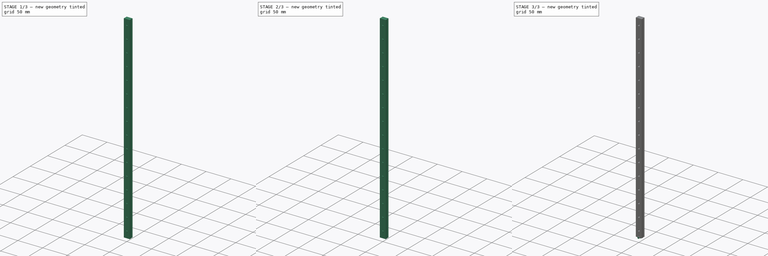
[diagram: build sequence overview — one tinted view per stage of 3, left to right]
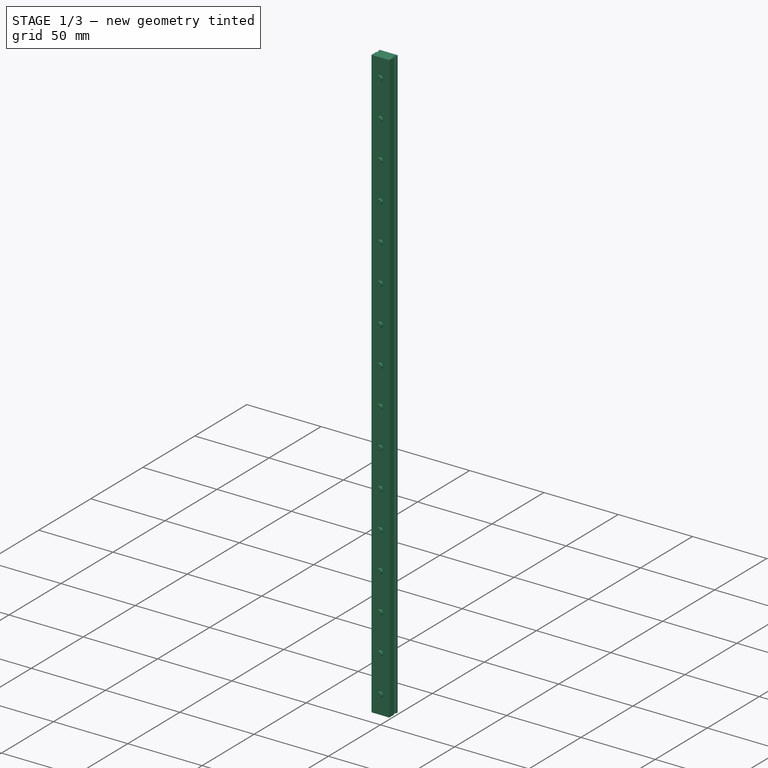
[diagram: stage 1 of 3 — iso view after this stage's code; geometry added in this stage tinted green]
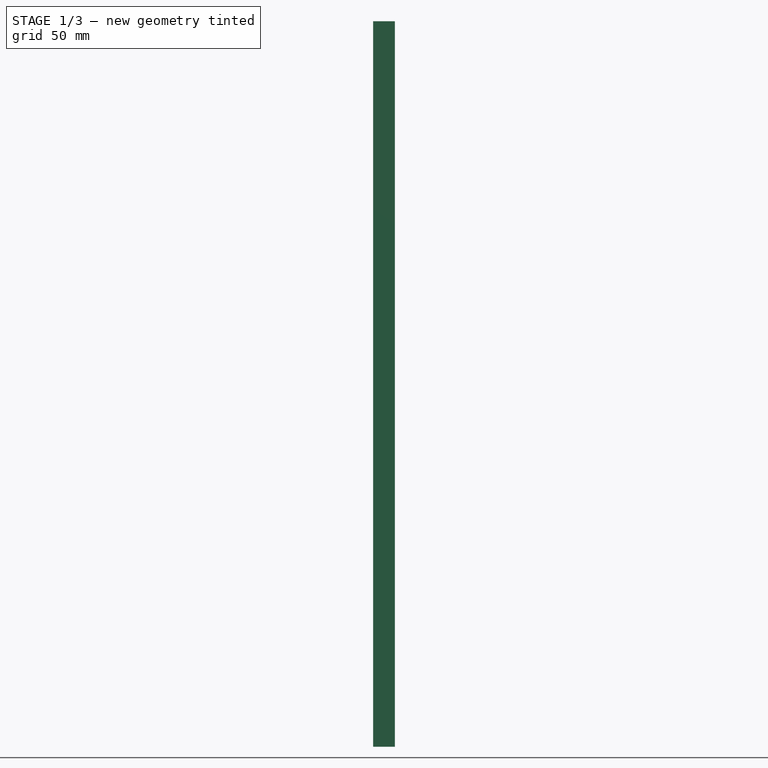
[diagram: stage 1 of 3 — front view after this stage's code; geometry added in this stage tinted green]
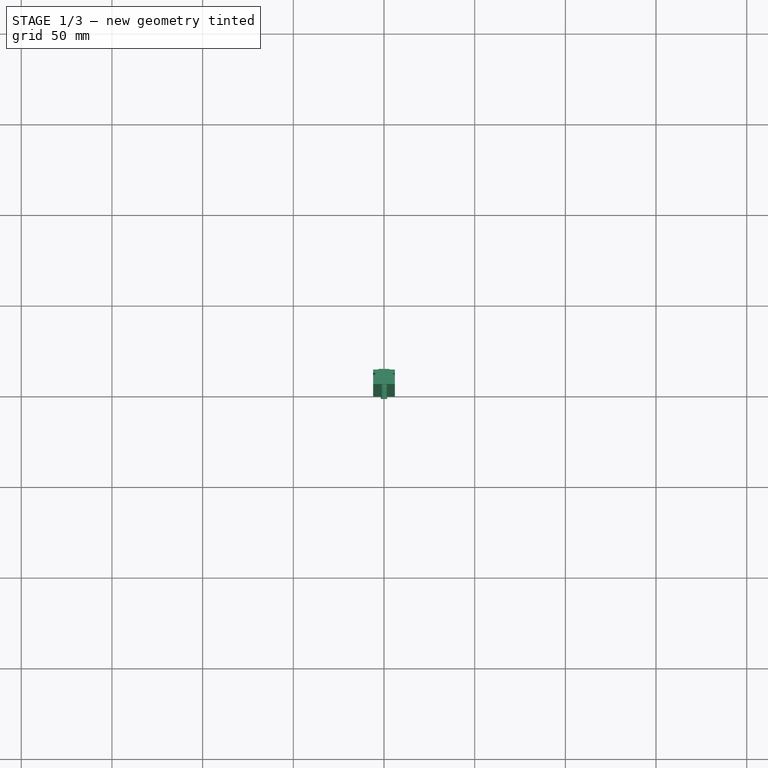
[diagram: stage 1 of 3 — top view after this stage's code; geometry added in this stage tinted green]
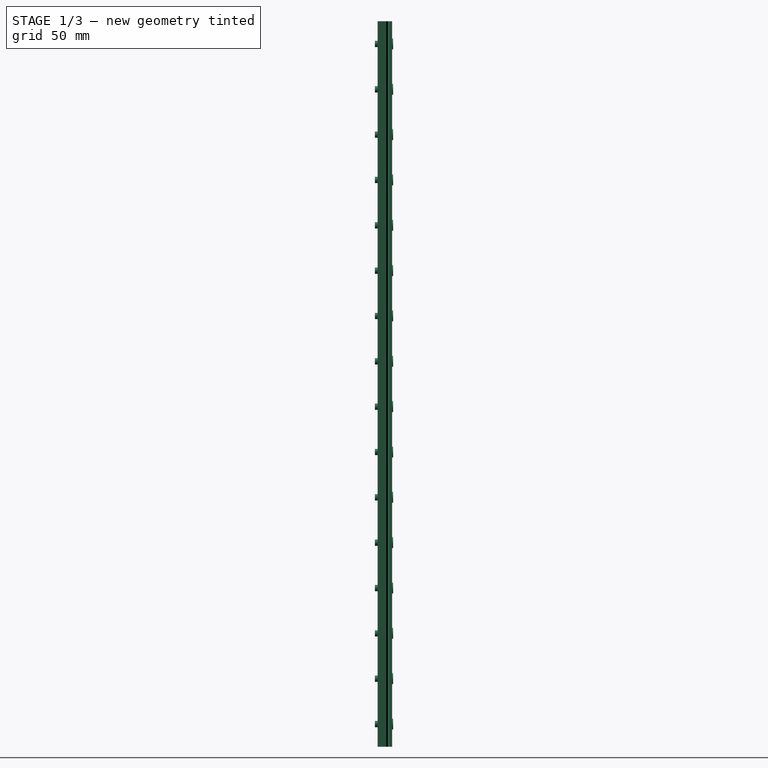
[diagram: stage 1 of 3 — right view after this stage's code; geometry added in this stage tinted green]
FCSTD DOCUMENT
Label: mgn_rail
objects: Sketcher::SketchObject×3, PartDesign::Pad×3, PartDesign::Fillet×2, Part::MultiFuse×1, Part::FeaturePython×1, Part::Cut×1
note: 14 computed .brp shape members not serialized (recipe doc carries the construction recipe); baked Part::Feature solids carry a one-line shape summary decoded from their .brp

FEATURE [Sketcher::SketchObject] Sketch  label="Rail"
  sketch-geometry (15):
    g0: LineSegment StartX=-6 StartY=8 StartZ=0 EndX=6 EndY=8 EndZ=0
    g1: LineSegment StartX=6 StartY=8 StartZ=0 EndX=6 EndY=6.55 EndZ=0
    g2: LineSegment StartX=6 StartY=6.55 StartZ=0 EndX=4.5 EndY=5.65 EndZ=0
    g3: LineSegment StartX=4.5 StartY=5.65 StartZ=0 EndX=6 EndY=4.75 EndZ=0
    g4: LineSegment StartX=6 StartY=4.75 StartZ=0 EndX=6 EndY=0 EndZ=0
    g5: LineSegment StartX=6 StartY=0 StartZ=0 EndX=-6 EndY=0 EndZ=0
    g6: LineSegment StartX=-6 StartY=0 StartZ=0 EndX=-6 EndY=4.75 EndZ=0
    g7: LineSegment StartX=-6 StartY=4.75 StartZ=0 EndX=-4.5 EndY=5.65 EndZ=0
    g8: LineSegment StartX=-4.5 StartY=5.65 StartZ=0 EndX=-6 EndY=6.55 EndZ=0
    g9: LineSegment StartX=-6 StartY=6.55 StartZ=0 EndX=-6 EndY=8 EndZ=0
    g10: LineSegment [constr] StartX=-6 StartY=0 StartZ=0 EndX=-6 EndY=16.3951 EndZ=0
    g11: LineSegment [constr] StartX=6 StartY=0 StartZ=0 EndX=6 EndY=13.5168 EndZ=0
    g12: LineSegment [constr] StartX=-6 StartY=6.55 StartZ=0 EndX=16.521 EndY=6.55 EndZ=0
    g13: LineSegment [constr] StartX=-6 StartY=4.75 StartZ=0 EndX=16.8629 EndY=4.75 EndZ=0
    g14: LineSegment [constr] StartX=-4.5 StartY=5.65 StartZ=0 EndX=16.7945 EndY=5.65 EndZ=0
  constraints (39):
    c: Horizontal(g0)
    c: Coincident(g0,g1)
    c: Coincident(g1,g2)
    c: Coincident(g2,g3)
    c: Coincident(g3,g4)
    c: Vertical(g4)
    c: Coincident(g4,g5)
    c: Horizontal(g5)
    c: Coincident(g5,g6)
    c: Vertical(g6)
    c: Coincident(g6,g7)
    c: Coincident(g7,g8)
    c: Coincident(g8,g9)
    c: Coincident(g9,g0)
    c: Vertical(g9)
    c: DistanceX(g4,g5) = -12
    c: Symmetric(g5,g4,g-2)
    c: Coincident(g10,g5)
    c: Vertical(g10)
    c: Vertical(g11)
    c: PointOnObject(g8,g10)
    c: PointOnObject(g1,g11)
    c: Vertical(g1)
    c: Coincident(g11,g4)
    c: DistanceY(g5,g0) = 8
    c: Coincident(g12,g8)
    c: Horizontal(g12)
    c: PointOnObject(g1,g12)
    c: Coincident(g13,g6)
    c: Horizontal(g13)
    c: Coincident(g14,g7)
    c: PointOnObject(g2,g14)
    c: PointOnObject(g3,g13)
    c: DistanceY(g8,g0) = 1.45
    c: Symmetric(g7,g2,g-2)
    c: DistanceY(g3,g4) = -4.75
    c: DistanceX(g7,g2) = 9
    c: Symmetric(g8,g6,g14)
    c: PointOnObject(g4,g-1)
FEATURE [PartDesign::Pad] Pad
  Length = 400
  Length2 = 100
  Sketch = -> Sketch
  Type = 0
FEATURE [Part::MultiFuse] Fusion001
  Placement = pos=(0,0,12.5) rot=(0,0,1;0rad)
FEATURE [Part::FeaturePython] Array  # Draft array (typed FeaturePython)
  Angle = 360
  ArrayType = 0
  Axis = (0,0,1)
  Base = -> Fusion001
  Center = (0,0,0)
  IntervalX = (1,0,0)
  IntervalY = (0,0,25)
  IntervalZ = (0,0,1)
  NumberPolar = 1
  NumberX = 1
  NumberY = 16
  NumberZ = 1
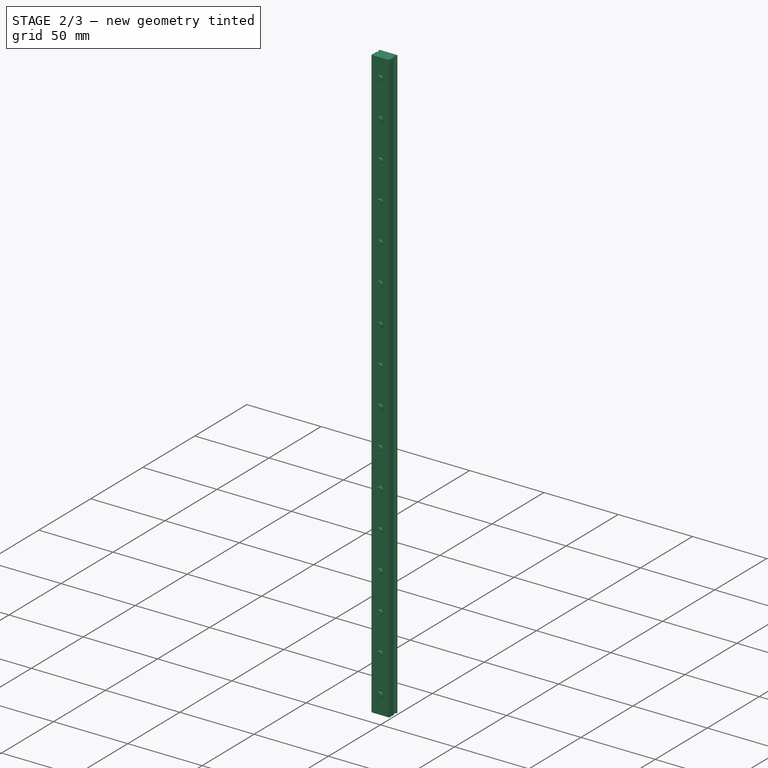
[diagram: stage 2 of 3 — iso view after this stage's code; geometry added in this stage tinted green]
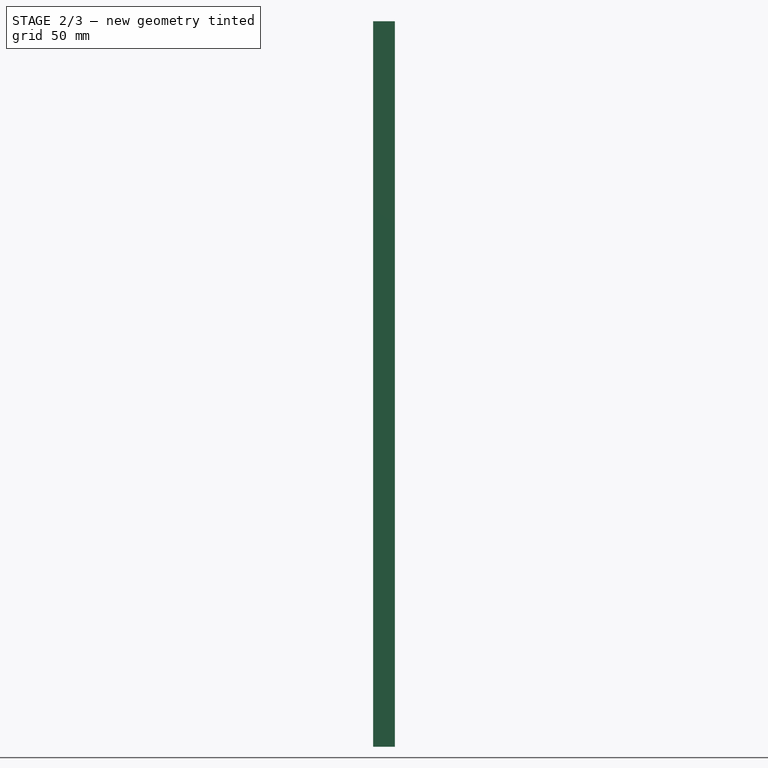
[diagram: stage 2 of 3 — front view after this stage's code; geometry added in this stage tinted green]
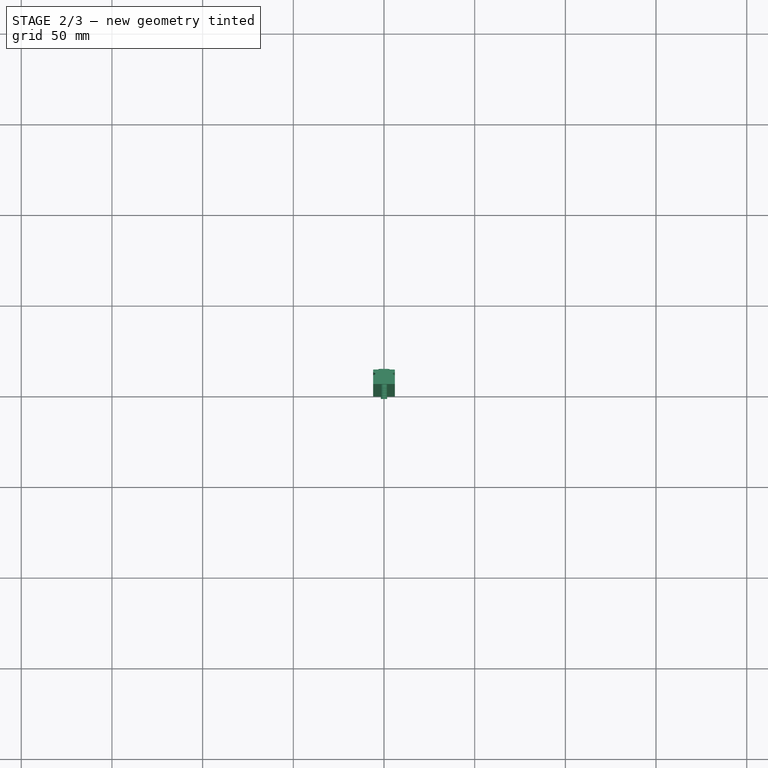
[diagram: stage 2 of 3 — top view after this stage's code; geometry added in this stage tinted green]
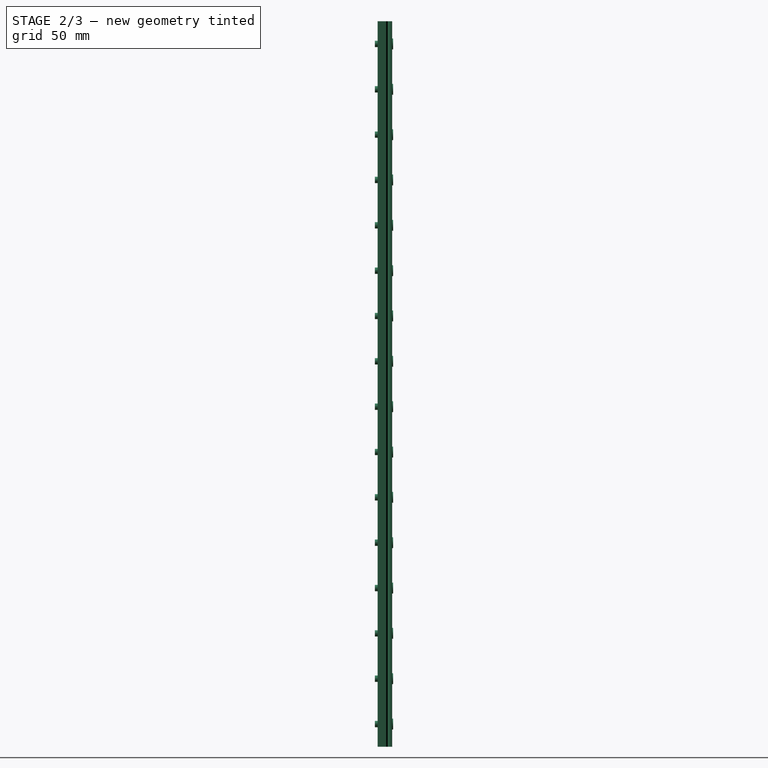
[diagram: stage 2 of 3 — right view after this stage's code; geometry added in this stage tinted green]
FEATURE [PartDesign::Fillet] Fillet
  Base = -> Pad [Edge1,Edge26,Edge20,Edge23]
  Radius = 0.25
FEATURE [PartDesign::Fillet] Fillet001
  Base = -> Fillet [Edge3,Edge20,Edge34,Edge36]
  Radius = 0.25
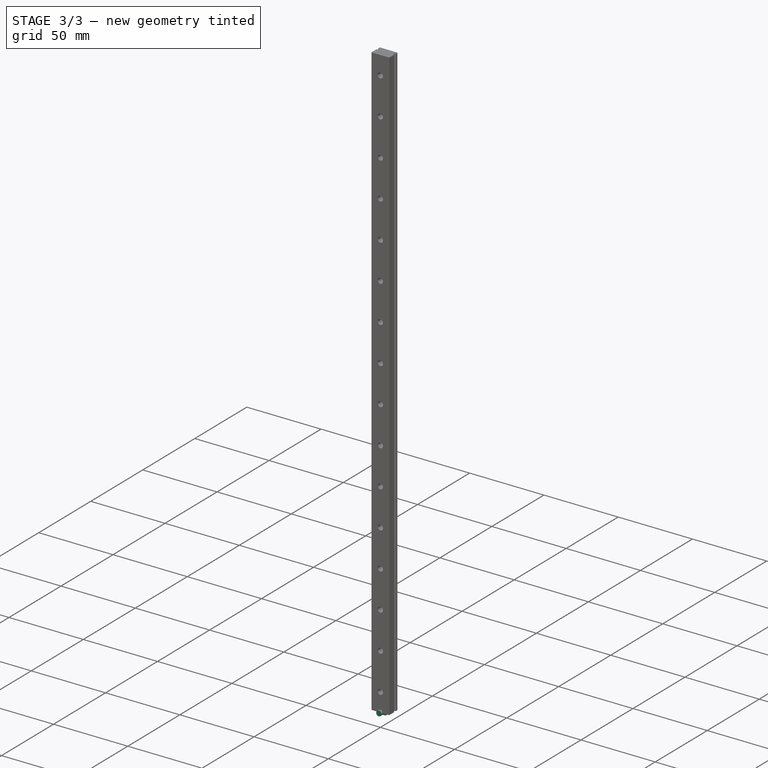
[diagram: stage 3 of 3 — iso view after this stage's code; geometry added in this stage tinted green]
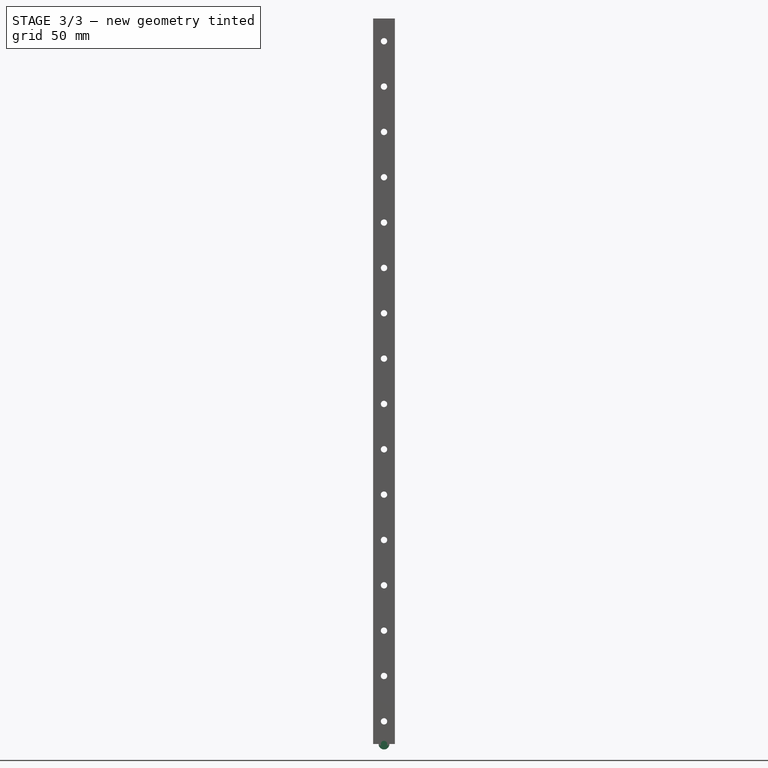
[diagram: stage 3 of 3 — front view after this stage's code; geometry added in this stage tinted green]
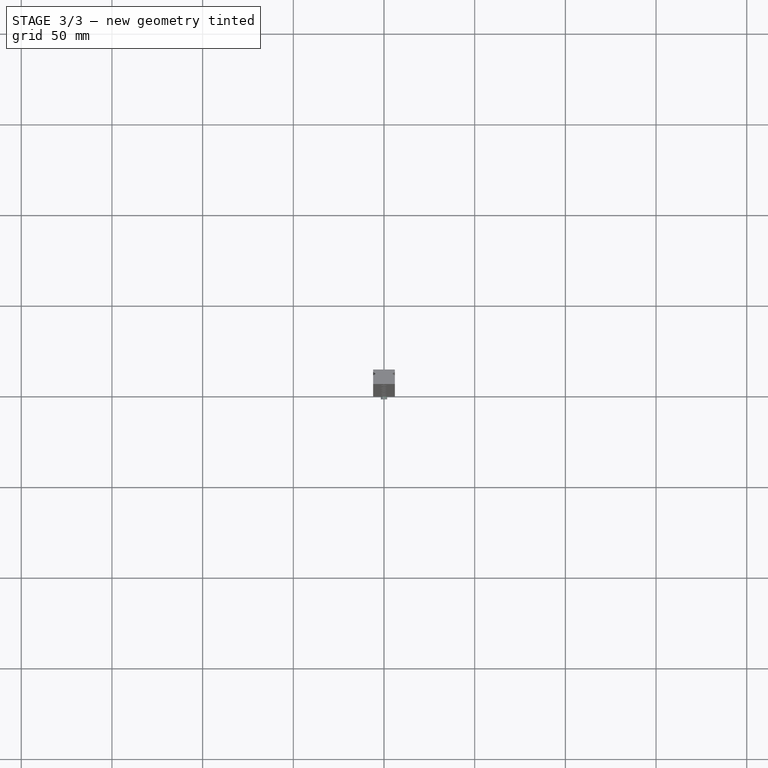
[diagram: stage 3 of 3 — top view after this stage's code; geometry added in this stage tinted green]
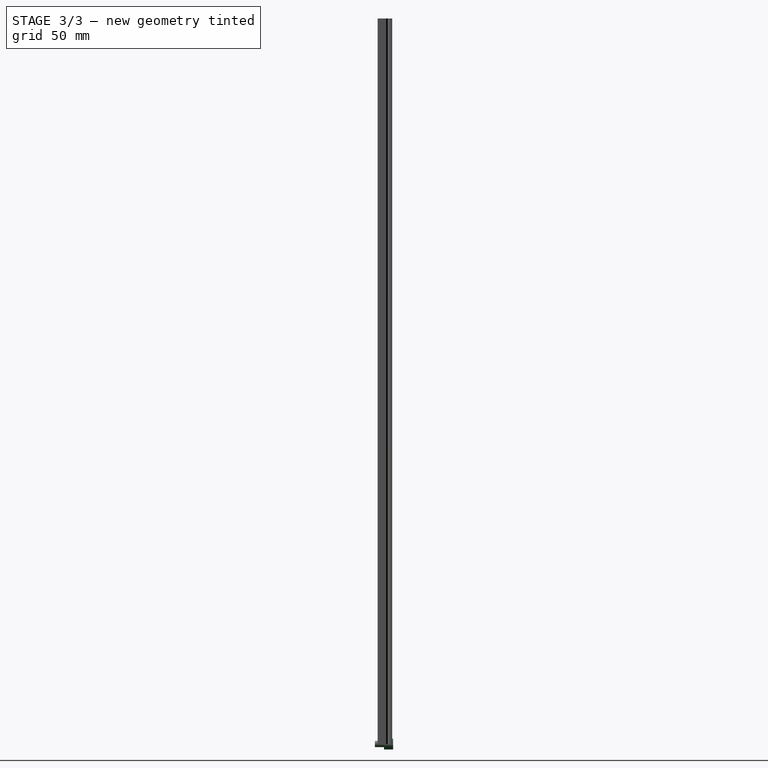
[diagram: stage 3 of 3 — right view after this stage's code; geometry added in this stage tinted green]
FEATURE [Sketcher::SketchObject] Sketch001
  Placement = pos=(0,3.5,0) rot=(-1,0,0;4.71239rad)
  sketch-geometry (1):
    g0: Circle CenterX=0 CenterY=0 CenterZ=0 NormalX=0 NormalY=0 NormalZ=1 Radius=3
  constraints (2):
    c: Radius(g0) = 3
    c: Coincident(g0,g-1)
FEATURE [PartDesign::Pad] Pad001
  Length = 5
  Length2 = 100
  Placement = pos=(0,3.5,0) rot=(-1,0,0;4.71239rad)
  Reversed = true
  Sketch = -> Sketch001
  Type = 0
FEATURE [Sketcher::SketchObject] Sketch002
  Placement = pos=(0,3.5,0) rot=(1,0,0;1.5708rad)
  Support = -> Pad001 [Face2]
  sketch-geometry (1):
    g0: Circle CenterX=0 CenterY=0 CenterZ=0 NormalX=0 NormalY=0 NormalZ=1 Radius=1.75
  constraints (2):
    c: Coincident(g0,g-1)
    c: Radius(g0) = 1.75
FEATURE [PartDesign::Pad] Pad002
  Length = 5
  Length2 = 100
  Placement = pos=(0,3.5,0) rot=(-1,0,0;4.71239rad)
  Sketch = -> Sketch002
  Type = 0
FEATURE [Part::Cut] Cut
  Base = -> Fillet001
  Tool = -> Array
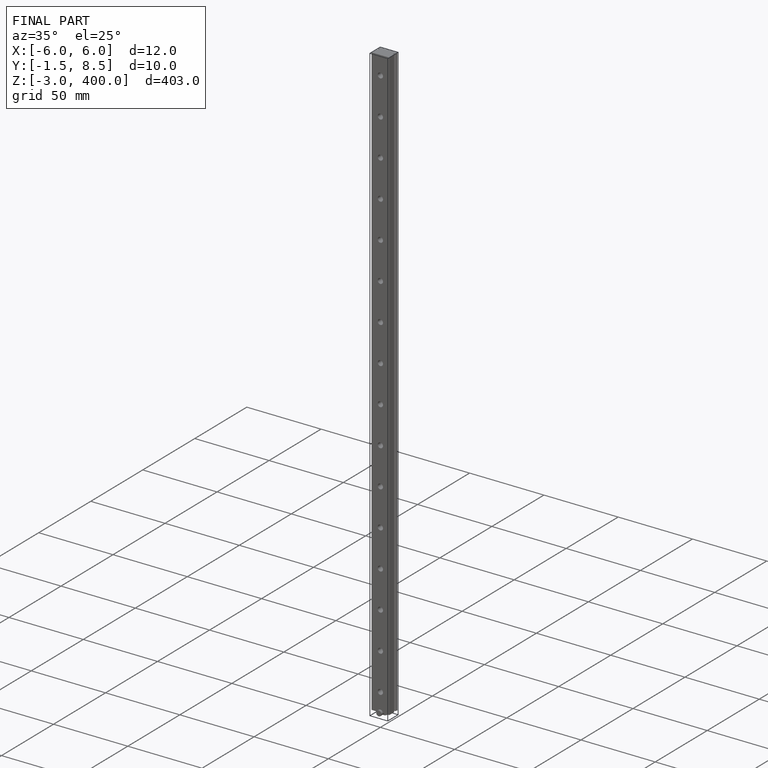
[diagram: finished part — iso view with bounding-box wireframe]
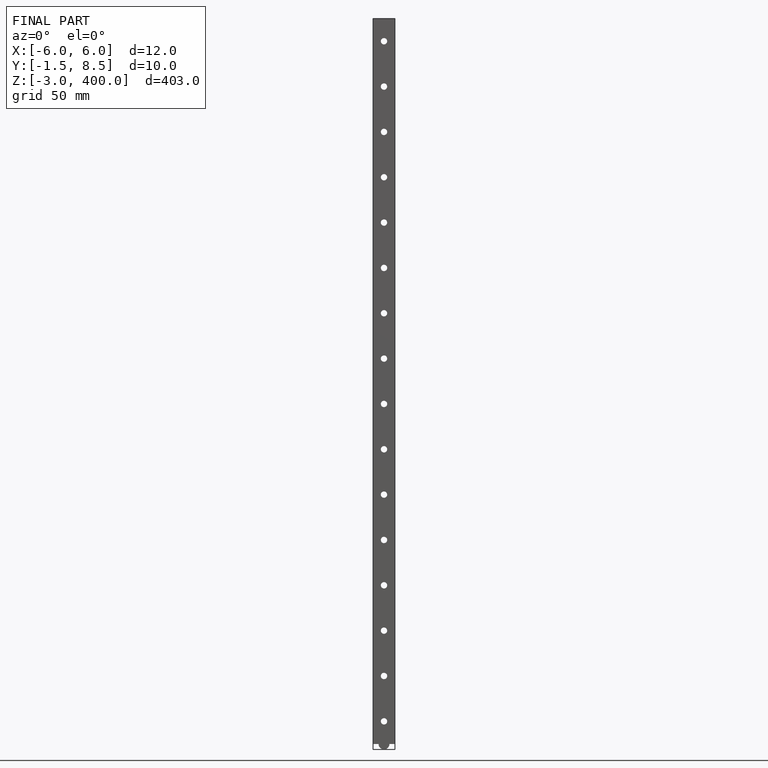
[diagram: finished part — front view with bounding-box wireframe]
